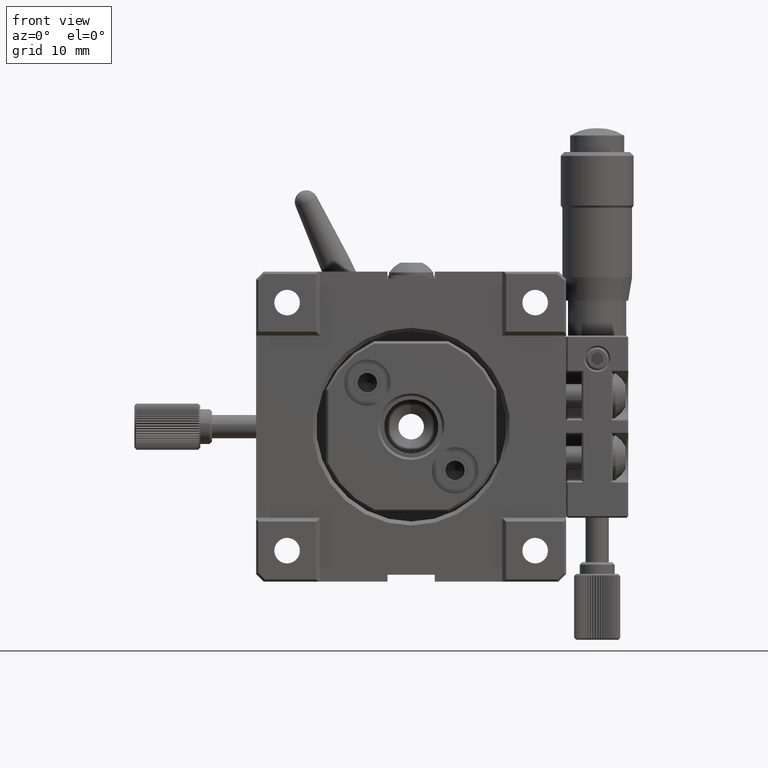
[diagram: clean part render]
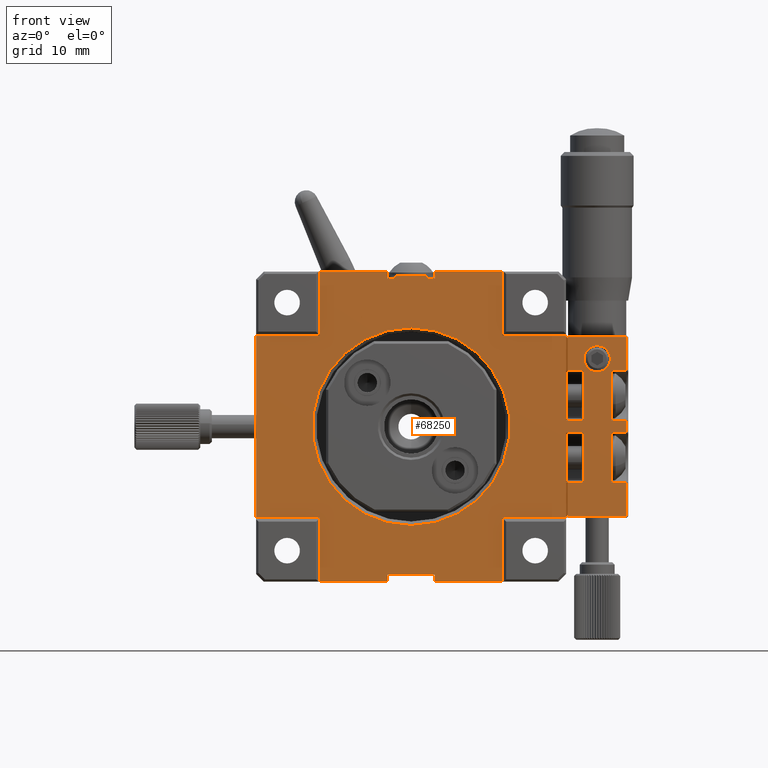
[diagram: same view with one face highlighted and labeled with its STEP entity id]
A machine part, front view. The second image highlights one B-rep face of the part: STEP entity #68250.
In plain terms, the highlighted planar face has unit normal (0, -1, 0).
Its self-contained STEP definition (entity closure, byte-faithful):
#305 = VECTOR ( 'NONE', #69657, 1000.000000000000000 ) ;
#596 = CARTESIAN_POINT ( 'NONE',  ( -11.75000000000000000, 0.5000000000000000000, 20.00000000000000000 ) ) ;
#1166 = VECTOR ( 'NONE', #2048, 1000.000000000000000 ) ;
#1275 = CARTESIAN_POINT ( 'NONE',  ( 22.19999999999999929, 0.5000000000000000000, 0.8000000000000000444 ) ) ;
#1514 = LINE ( 'NONE', #20773, #24554 ) ;
#1616 = VERTEX_POINT ( 'NONE', #49178 ) ;
#1644 = VECTOR ( 'NONE', #62742, 1000.000000000000000 ) ;
#2048 = DIRECTION ( 'NONE',  ( 1.018286075287359834E-16, 0.000000000000000000, -1.000000000000000000 ) ) ;
#2622 = ORIENTED_EDGE ( 'NONE', *, *, #53156, .T. ) ;
#2629 = VERTEX_POINT ( 'NONE', #14756 ) ;
#2637 = VERTEX_POINT ( 'NONE', #46365 ) ;
#2703 = EDGE_LOOP ( 'NONE', ( #38458, #41977, #75046, #14039, #77905, #35762, #25417, #46527, #57033, #58699, #4677, #33734, #14858, #42198, #5572, #34645, #76983, #34837, #22794, #42275, #2622, #53878, #45817, #31818, #65337, #14040, #43835, #62694, #54703, #78916, #64433, #81099, #78407, #17248, #61199, #46914, #71843, #10741, #50081, #68660, #14699, #80212, #60956, #42434 ) ) ;
#3072 = DIRECTION ( 'NONE',  ( 0.000000000000000000, 0.000000000000000000, -1.000000000000000000 ) ) ;
#3830 = LINE ( 'NONE', #28834, #33630 ) ;
#4087 = CARTESIAN_POINT ( 'NONE',  ( 25.80000000000000071, 0.5000000000000000000, -0.8000000000000000444 ) ) ;
#4136 = DIRECTION ( 'NONE',  ( 1.379588503577817868E-16, 0.000000000000000000, -1.000000000000000000 ) ) ;
#4311 = CARTESIAN_POINT ( 'NONE',  ( 3.050000000000000266, 0.5000000000000000000, 12.25000000000000000 ) ) ;
#4677 = ORIENTED_EDGE ( 'NONE', *, *, #53858, .T. ) ;
#5004 = CARTESIAN_POINT ( 'NONE',  ( -20.00000000000000000, 0.5000000000000000000, -11.75000000000000000 ) ) ;
#5155 = VERTEX_POINT ( 'NONE', #50746 ) ;
#5236 = LINE ( 'NONE', #17932, #14737 ) ;
#5362 = AXIS2_PLACEMENT_3D ( 'NONE', #20421, #45461, #70554 ) ;
#5448 = CARTESIAN_POINT ( 'NONE',  ( 20.19999999999999929, 0.5000000000000000000, 11.54999999999999893 ) ) ;
#5572 = ORIENTED_EDGE ( 'NONE', *, *, #58209, .T. ) ;
#5777 = VERTEX_POINT ( 'NONE', #28445 ) ;
#5808 = LINE ( 'NONE', #50101, #76094 ) ;
#5899 = CARTESIAN_POINT ( 'NONE',  ( 20.00000000000000000, 0.5000000000000000000, -7.200000000000000178 ) ) ;
#5942 = VERTEX_POINT ( 'NONE', #6267 ) ;
#6267 = CARTESIAN_POINT ( 'NONE',  ( 20.19999999999999929, 0.5000000000000000000, -7.200000000000000178 ) ) ;
#6441 = DIRECTION ( 'NONE',  ( 1.379588503577817868E-16, 0.000000000000000000, 1.000000000000000000 ) ) ;
#6574 = EDGE_CURVE ( 'NONE', #13613, #40502, #56039, .T. ) ;
#7344 = CARTESIAN_POINT ( 'NONE',  ( -19.00000000000000000, 0.5000000000000000000, -20.00000000000000000 ) ) ;
#7421 = VERTEX_POINT ( 'NONE', #4087 ) ;
#7445 = VECTOR ( 'NONE', #54105, 1000.000000000000000 ) ;
#8600 = CARTESIAN_POINT ( 'NONE',  ( 3.050000000000000266, 0.5000000000000000000, 12.25000000000000000 ) ) ;
#8639 = DIRECTION ( 'NONE',  ( 0.000000000000000000, 0.000000000000000000, 1.000000000000000000 ) ) ;
#8772 = DIRECTION ( 'NONE',  ( 0.000000000000000000, 0.000000000000000000, 1.000000000000000000 ) ) ;
#8943 = DIRECTION ( 'NONE',  ( 1.000000000000000000, 0.000000000000000000, 0.000000000000000000 ) ) ;
#9125 = CARTESIAN_POINT ( 'NONE',  ( 20.19999999999999929, 0.5000000000000000000, 11.75000000000000000 ) ) ;
#9457 = LINE ( 'NONE', #64887, #78057 ) ;
#9487 = VECTOR ( 'NONE', #31754, 1000.000000000000000 ) ;
#10002 = VERTEX_POINT ( 'NONE', #62471 ) ;
#10459 = LINE ( 'NONE', #4311, #79166 ) ;
#10661 = VECTOR ( 'NONE', #41744, 1000.000000000000000 ) ;
#10741 = ORIENTED_EDGE ( 'NONE', *, *, #42909, .T. ) ;
#11833 = DIRECTION ( 'NONE',  ( 0.000000000000000000, 0.000000000000000000, 1.000000000000000000 ) ) ;
#12183 = CARTESIAN_POINT ( 'NONE',  ( 11.75000000000000000, 0.5000000000000000000, 12.25000000000000000 ) ) ;
#12422 = EDGE_CURVE ( 'NONE', #57725, #5155, #71441, .T. ) ;
#12443 = LINE ( 'NONE', #5899, #39296 ) ;
#12822 = CIRCLE ( 'NONE', #25933, 1.700000000000000178 ) ;
#12966 = LINE ( 'NONE', #15268, #24861 ) ;
#12971 = VERTEX_POINT ( 'NONE', #28897 ) ;
#13613 = VERTEX_POINT ( 'NONE', #70657 ) ;
#13782 = CARTESIAN_POINT ( 'NONE',  ( -19.00000000000000000, 0.5000000000000000000, 20.00000000000000000 ) ) ;
#14039 = ORIENTED_EDGE ( 'NONE', *, *, #60121, .T. ) ;
#14040 = ORIENTED_EDGE ( 'NONE', *, *, #73221, .T. ) ;
#14286 = DIRECTION ( 'NONE',  ( -1.527429112931039874E-16, 0.000000000000000000, -1.000000000000000000 ) ) ;
#14441 = CARTESIAN_POINT ( 'NONE',  ( 3.050000000000000266, 0.5000000000000000000, -19.09999999999999787 ) ) ;
#14575 = CARTESIAN_POINT ( 'NONE',  ( 27.79999999999999716, 0.5000000000000000000, -11.54999999999999893 ) ) ;
#14666 = VERTEX_POINT ( 'NONE', #79908 ) ;
#14699 = ORIENTED_EDGE ( 'NONE', *, *, #6574, .T. ) ;
#14722 = LINE ( 'NONE', #15109, #7445 ) ;
#14737 = VECTOR ( 'NONE', #16699, 1000.000000000000000 ) ;
#14756 = CARTESIAN_POINT ( 'NONE',  ( -3.050000000000000266, 0.5000000000000000000, 19.09999999999999787 ) ) ;
#14858 = ORIENTED_EDGE ( 'NONE', *, *, #24326, .T. ) ;
#14888 = EDGE_CURVE ( 'NONE', #74481, #77259, #32486, .T. ) ;
#14907 = CARTESIAN_POINT ( 'NONE',  ( 24.00000000000000000, 0.5000000000000000000, 8.750000000000000000 ) ) ;
#15109 = CARTESIAN_POINT ( 'NONE',  ( 22.00000000000000000, 0.5000000000000000000, -0.8000000000000000444 ) ) ;
#15260 = DIRECTION ( 'NONE',  ( 0.000000000000000000, 0.000000000000000000, -1.000000000000000000 ) ) ;
#15268 = CARTESIAN_POINT ( 'NONE',  ( 2.000000000000000000, 0.5000000000000000000, 19.50000000000000000 ) ) ;
#15662 = DIRECTION ( 'NONE',  ( -1.000000000000000000, 0.000000000000000000, 0.000000000000000000 ) ) ;
#16443 = VERTEX_POINT ( 'NONE', #78115 ) ;
#16621 = EDGE_CURVE ( 'NONE', #17672, #7421, #42753, .T. ) ;
#16699 = DIRECTION ( 'NONE',  ( -1.390841875404341941E-16, 0.000000000000000000, 1.000000000000000000 ) ) ;
#16956 = DIRECTION ( 'NONE',  ( 0.000000000000000000, 0.000000000000000000, -1.000000000000000000 ) ) ;
#17248 = ORIENTED_EDGE ( 'NONE', *, *, #48293, .F. ) ;
#17369 = CARTESIAN_POINT ( 'NONE',  ( 1.561424668912875111E-15, 0.5000000000000000000, 12.75000000000000000 ) ) ;
#17446 = DIRECTION ( 'NONE',  ( 1.000000000000000000, 0.000000000000000000, 0.000000000000000000 ) ) ;
#17662 = DIRECTION ( 'NONE',  ( -1.527429112931039874E-16, 0.000000000000000000, 1.000000000000000000 ) ) ;
#17672 = VERTEX_POINT ( 'NONE', #27593 ) ;
#17932 = CARTESIAN_POINT ( 'NONE',  ( 11.75000000000000000, 0.5000000000000000000, 12.25000000000000000 ) ) ;
#18058 = CARTESIAN_POINT ( 'NONE',  ( 20.00000000000000000, 0.5000000000000000000, 11.75000000000000000 ) ) ;
#18065 = AXIS2_PLACEMENT_3D ( 'NONE', #77431, #21953, #21144 ) ;
#18072 = CARTESIAN_POINT ( 'NONE',  ( -3.050000000000000266, 0.5000000000000000000, 12.25000000000000000 ) ) ;
#18117 = EDGE_CURVE ( 'NONE', #33339, #42830, #57854, .T. ) ;
#18283 = CARTESIAN_POINT ( 'NONE',  ( 20.00000000000000000, 0.5000000000000000000, -7.200000000000000178 ) ) ;
#18410 = EDGE_CURVE ( 'NONE', #20595, #24511, #50982, .T. ) ;
#18981 = VERTEX_POINT ( 'NONE', #75782 ) ;
#19102 = VERTEX_POINT ( 'NONE', #53532 ) ;
#19218 = EDGE_CURVE ( 'NONE', #51148, #17672, #12443, .T. ) ;
#19478 = VECTOR ( 'NONE', #48911, 1000.000000000000000 ) ;
#19533 = VECTOR ( 'NONE', #53551, 1000.000000000000000 ) ;
#19594 = VERTEX_POINT ( 'NONE', #42346 ) ;
#19730 = VECTOR ( 'NONE', #67369, 1000.000000000000000 ) ;
#20027 = FACE_OUTER_BOUND ( 'NONE', #2703, .T. ) ;
#20180 = EDGE_CURVE ( 'NONE', #46474, #10002, #40836, .T. ) ;
#20224 = LINE ( 'NONE', #39514, #21326 ) ;
#20276 = LINE ( 'NONE', #43709, #59672 ) ;
#20395 = LINE ( 'NONE', #39697, #80009 ) ;
#20421 = CARTESIAN_POINT ( 'NONE',  ( -12.25000000000000000, 0.5000000000000000000, 12.25000000000000000 ) ) ;
#20595 = VERTEX_POINT ( 'NONE', #38311 ) ;
#20773 = CARTESIAN_POINT ( 'NONE',  ( 20.00000000000000000, 0.5000000000000000000, 0.8000000000000000444 ) ) ;
#20877 = VERTEX_POINT ( 'NONE', #48499 ) ;
#21144 = DIRECTION ( 'NONE',  ( 0.000000000000000000, 0.000000000000000000, -1.000000000000000000 ) ) ;
#21326 = VECTOR ( 'NONE', #63350, 1000.000000000000000 ) ;
#21953 = DIRECTION ( 'NONE',  ( 0.000000000000000000, 1.000000000000000000, 0.000000000000000000 ) ) ;
#22006 = EDGE_CURVE ( 'NONE', #74760, #19102, #20276, .T. ) ;
#22510 = LINE ( 'NONE', #18283, #76863 ) ;
#22794 = ORIENTED_EDGE ( 'NONE', *, *, #53988, .T. ) ;
#23769 = DIRECTION ( 'NONE',  ( 0.000000000000000000, 0.000000000000000000, -1.000000000000000000 ) ) ;
#23906 = VECTOR ( 'NONE', #17662, 1000.000000000000000 ) ;
#24326 = EDGE_CURVE ( 'NONE', #28774, #5942, #22510, .T. ) ;
#24435 = CARTESIAN_POINT ( 'NONE',  ( -19.00000000000000000, 0.5000000000000000000, 20.00000000000000000 ) ) ;
#24511 = VERTEX_POINT ( 'NONE', #77794 ) ;
#24554 = VECTOR ( 'NONE', #69681, 1000.000000000000000 ) ;
#24563 = CARTESIAN_POINT ( 'NONE',  ( 22.19999999999999929, 0.5000000000000000000, 11.75000000000000000 ) ) ;
#24615 = DIRECTION ( 'NONE',  ( 9.130123557772669567E-17, 0.000000000000000000, 1.000000000000000000 ) ) ;
#24861 = VECTOR ( 'NONE', #57273, 1000.000000000000000 ) ;
#24934 = LINE ( 'NONE', #45436, #56417 ) ;
#25225 = VECTOR ( 'NONE', #34394, 1000.000000000000000 ) ;
#25417 = ORIENTED_EDGE ( 'NONE', *, *, #79322, .T. ) ;
#25628 = VERTEX_POINT ( 'NONE', #34078 ) ;
#25933 = AXIS2_PLACEMENT_3D ( 'NONE', #14907, #65015, #8772 ) ;
#26579 = FACE_BOUND ( 'NONE', #59640, .T. ) ;
#27258 = DIRECTION ( 'NONE',  ( 0.000000000000000000, 1.000000000000000000, 0.000000000000000000 ) ) ;
#27300 = CARTESIAN_POINT ( 'NONE',  ( 20.00000000000000000, 0.5000000000000000000, -11.75000000000000000 ) ) ;
#27593 = CARTESIAN_POINT ( 'NONE',  ( 25.80000000000000071, 0.5000000000000000000, -7.200000000000000178 ) ) ;
#27995 = VECTOR ( 'NONE', #15662, 1000.000000000000000 ) ;
#28445 = CARTESIAN_POINT ( 'NONE',  ( -11.75000000000000000, 0.5000000000000000000, -20.00000000000000000 ) ) ;
#28754 = CARTESIAN_POINT ( 'NONE',  ( -12.25000000000000000, 0.5000000000000000000, 19.09999999999999787 ) ) ;
#28774 = VERTEX_POINT ( 'NONE', #46907 ) ;
#28834 = CARTESIAN_POINT ( 'NONE',  ( 20.00000000000000000, 0.5000000000000000000, 7.200000000000000178 ) ) ;
#28897 = CARTESIAN_POINT ( 'NONE',  ( 27.79999999999999716, 0.5000000000000000000, 0.8000000000000000444 ) ) ;
#29178 = EDGE_CURVE ( 'NONE', #48144, #51148, #49990, .T. ) ;
#29309 = DIRECTION ( 'NONE',  ( 1.018286075287359834E-16, 0.000000000000000000, 1.000000000000000000 ) ) ;
#30091 = VERTEX_POINT ( 'NONE', #63759 ) ;
#30710 = DIRECTION ( 'NONE',  ( 1.000000000000000000, 0.000000000000000000, 0.000000000000000000 ) ) ;
#30726 = EDGE_CURVE ( 'NONE', #5155, #74760, #54964, .T. ) ;
#30750 = VECTOR ( 'NONE', #74567, 1000.000000000000000 ) ;
#30791 = LINE ( 'NONE', #74363, #19730 ) ;
#31355 = VERTEX_POINT ( 'NONE', #58801 ) ;
#31498 = CARTESIAN_POINT ( 'NONE',  ( 3.050000000000000266, 0.5000000000000000000, -20.00000000000000000 ) ) ;
#31754 = DIRECTION ( 'NONE',  ( 9.130123557772669567E-17, 0.000000000000000000, 1.000000000000000000 ) ) ;
#31818 = ORIENTED_EDGE ( 'NONE', *, *, #54983, .T. ) ;
#31847 = EDGE_CURVE ( 'NONE', #31355, #12971, #9457, .T. ) ;
#32385 = EDGE_CURVE ( 'NONE', #2637, #72750, #75822, .T. ) ;
#32485 = VERTEX_POINT ( 'NONE', #27300 ) ;
#32486 = CIRCLE ( 'NONE', #49546, 12.75000000000000000 ) ;
#33169 = LINE ( 'NONE', #34378, #57925 ) ;
#33339 = VERTEX_POINT ( 'NONE', #14441 ) ;
#33630 = VECTOR ( 'NONE', #67429, 1000.000000000000000 ) ;
#33636 = DIRECTION ( 'NONE',  ( 1.000000000000000000, 0.000000000000000000, 0.000000000000000000 ) ) ;
#33657 = CARTESIAN_POINT ( 'NONE',  ( 25.80000000000000071, 0.5000000000000000000, 7.200000000000000178 ) ) ;
#33734 = ORIENTED_EDGE ( 'NONE', *, *, #35012, .T. ) ;
#34078 = CARTESIAN_POINT ( 'NONE',  ( 25.80000000000000071, 0.5000000000000000000, 0.8000000000000000444 ) ) ;
#34378 = CARTESIAN_POINT ( 'NONE',  ( -12.25000000000000000, 0.5000000000000000000, -11.75000000000000000 ) ) ;
#34394 = DIRECTION ( 'NONE',  ( 1.000000000000000000, 0.000000000000000000, 0.000000000000000000 ) ) ;
#34512 = CARTESIAN_POINT ( 'NONE',  ( -11.75000000000000000, 0.5000000000000000000, 12.25000000000000000 ) ) ;
#34645 = ORIENTED_EDGE ( 'NONE', *, *, #29178, .T. ) ;
#34837 = ORIENTED_EDGE ( 'NONE', *, *, #16621, .T. ) ;
#34924 = LINE ( 'NONE', #28754, #73723 ) ;
#34956 = CARTESIAN_POINT ( 'NONE',  ( 20.00000000000000000, 0.5000000000000000000, 11.54999999999999893 ) ) ;
#35012 = EDGE_CURVE ( 'NONE', #79472, #28774, #81239, .T. ) ;
#35325 = LINE ( 'NONE', #34512, #69245 ) ;
#35566 = VECTOR ( 'NONE', #33636, 1000.000000000000000 ) ;
#35762 = ORIENTED_EDGE ( 'NONE', *, *, #18117, .T. ) ;
#35987 = LINE ( 'NONE', #79123, #10661 ) ;
#36199 = CARTESIAN_POINT ( 'NONE',  ( 0.000000000000000000, 0.5000000000000000000, -12.75000000000000000 ) ) ;
#36456 = ORIENTED_EDGE ( 'NONE', *, *, #18410, .T. ) ;
#36747 = CARTESIAN_POINT ( 'NONE',  ( 27.79999999999999716, 0.5000000000000000000, 7.200000000000000178 ) ) ;
#36853 = EDGE_CURVE ( 'NONE', #77259, #74481, #67906, .T. ) ;
#37102 = DIRECTION ( 'NONE',  ( -1.000000000000000000, 0.000000000000000000, 0.000000000000000000 ) ) ;
#37446 = VERTEX_POINT ( 'NONE', #43490 ) ;
#37546 = DIRECTION ( 'NONE',  ( -1.000000000000000000, 0.000000000000000000, 0.000000000000000000 ) ) ;
#37688 = CARTESIAN_POINT ( 'NONE',  ( 27.79999999999999716, 0.5000000000000000000, 11.75000000000000000 ) ) ;
#38311 = CARTESIAN_POINT ( 'NONE',  ( 24.00000000000000000, 0.5000000000000000000, 10.44999999999999041 ) ) ;
#38458 = ORIENTED_EDGE ( 'NONE', *, *, #45005, .T. ) ;
#38673 = DIRECTION ( 'NONE',  ( 0.000000000000000000, 0.000000000000000000, 1.000000000000000000 ) ) ;
#39296 = VECTOR ( 'NONE', #37102, 1000.000000000000000 ) ;
#39336 = LINE ( 'NONE', #45478, #48914 ) ;
#39514 = CARTESIAN_POINT ( 'NONE',  ( 20.19999999999999929, 0.5000000000000000000, 11.75000000000000000 ) ) ;
#39543 = CARTESIAN_POINT ( 'NONE',  ( 20.19999999999999929, 0.5000000000000000000, -11.54999999999999893 ) ) ;
#39697 = CARTESIAN_POINT ( 'NONE',  ( -12.25000000000000000, 0.5000000000000000000, -11.75000000000000000 ) ) ;
#39738 = LINE ( 'NONE', #40136, #44982 ) ;
#39888 = CARTESIAN_POINT ( 'NONE',  ( 27.79999999999999716, 0.5000000000000000000, 11.75000000000000000 ) ) ;
#39919 = LINE ( 'NONE', #58378, #56717 ) ;
#40045 = VERTEX_POINT ( 'NONE', #71296 ) ;
#40136 = CARTESIAN_POINT ( 'NONE',  ( -3.000000000000000000, 0.5000000000000000000, 19.50000000000000000 ) ) ;
#40380 = VECTOR ( 'NONE', #38673, 1000.000000000000000 ) ;
#40502 = VERTEX_POINT ( 'NONE', #596 ) ;
#40660 = EDGE_CURVE ( 'NONE', #24511, #20595, #12822, .T. ) ;
#40822 = VERTEX_POINT ( 'NONE', #5448 ) ;
#40836 = LINE ( 'NONE', #79032, #19533 ) ;
#40953 = DIRECTION ( 'NONE',  ( 1.000000000000000000, 0.000000000000000000, 0.000000000000000000 ) ) ;
#41407 = DIRECTION ( 'NONE',  ( -1.000000000000000000, 0.000000000000000000, 0.000000000000000000 ) ) ;
#41744 = DIRECTION ( 'NONE',  ( 0.000000000000000000, 0.000000000000000000, 1.000000000000000000 ) ) ;
#41852 = CARTESIAN_POINT ( 'NONE',  ( 22.19999999999999929, 0.5000000000000000000, 1.000000000000000000 ) ) ;
#41977 = ORIENTED_EDGE ( 'NONE', *, *, #53620, .T. ) ;
#42198 = ORIENTED_EDGE ( 'NONE', *, *, #72209, .T. ) ;
#42275 = ORIENTED_EDGE ( 'NONE', *, *, #31847, .T. ) ;
#42346 = CARTESIAN_POINT ( 'NONE',  ( 20.00000000000000000, 0.5000000000000000000, -0.8000000000000000444 ) ) ;
#42434 = ORIENTED_EDGE ( 'NONE', *, *, #44855, .T. ) ;
#42753 = LINE ( 'NONE', #49301, #19478 ) ;
#42830 = VERTEX_POINT ( 'NONE', #31498 ) ;
#42909 = EDGE_CURVE ( 'NONE', #57126, #14666, #24934, .T. ) ;
#42920 = EDGE_CURVE ( 'NONE', #72750, #32485, #20395, .T. ) ;
#43325 = ORIENTED_EDGE ( 'NONE', *, *, #36853, .T. ) ;
#43443 = EDGE_CURVE ( 'NONE', #58948, #16443, #30791, .T. ) ;
#43490 = CARTESIAN_POINT ( 'NONE',  ( 11.75000000000000000, 0.5000000000000000000, 20.00000000000000000 ) ) ;
#43709 = CARTESIAN_POINT ( 'NONE',  ( 20.00000000000000000, 0.5000000000000000000, 0.8000000000000000444 ) ) ;
#43835 = ORIENTED_EDGE ( 'NONE', *, *, #12422, .T. ) ;
#43841 = EDGE_CURVE ( 'NONE', #25628, #48891, #35987, .T. ) ;
#44213 = ORIENTED_EDGE ( 'NONE', *, *, #14888, .T. ) ;
#44544 = CARTESIAN_POINT ( 'NONE',  ( -11.75000000000000000, 0.5000000000000000000, -11.75000000000000000 ) ) ;
#44674 = CARTESIAN_POINT ( 'NONE',  ( -20.00000000000000000, 0.5000000000000000000, -19.00000000000000000 ) ) ;
#44855 = EDGE_CURVE ( 'NONE', #10002, #80962, #51631, .T. ) ;
#44982 = VECTOR ( 'NONE', #8943, 1000.000000000000000 ) ;
#45005 = EDGE_CURVE ( 'NONE', #80962, #67363, #33169, .T. ) ;
#45220 = EDGE_CURVE ( 'NONE', #37446, #40045, #70062, .T. ) ;
#45436 = CARTESIAN_POINT ( 'NONE',  ( -2.000000000000000000, 0.5000000000000000000, 19.50000000000000000 ) ) ;
#45461 = DIRECTION ( 'NONE',  ( 0.000000000000000000, -1.000000000000000000, 0.000000000000000000 ) ) ;
#45478 = CARTESIAN_POINT ( 'NONE',  ( -3.050000000000000266, 0.5000000000000000000, 12.25000000000000000 ) ) ;
#45654 = EDGE_CURVE ( 'NONE', #19102, #58948, #55990, .T. ) ;
#45817 = ORIENTED_EDGE ( 'NONE', *, *, #52132, .T. ) ;
#46365 = CARTESIAN_POINT ( 'NONE',  ( 11.75000000000000000, 0.5000000000000000000, -20.00000000000000000 ) ) ;
#46474 = VERTEX_POINT ( 'NONE', #67713 ) ;
#46527 = ORIENTED_EDGE ( 'NONE', *, *, #32385, .T. ) ;
#46724 = DIRECTION ( 'NONE',  ( 1.000000000000000000, 0.000000000000000000, 0.000000000000000000 ) ) ;
#46907 = CARTESIAN_POINT ( 'NONE',  ( 22.19999999999999929, 0.5000000000000000000, -7.200000000000000178 ) ) ;
#46914 = ORIENTED_EDGE ( 'NONE', *, *, #80822, .T. ) ;
#47279 = DIRECTION ( 'NONE',  ( 0.000000000000000000, 0.000000000000000000, -1.000000000000000000 ) ) ;
#47809 = EDGE_CURVE ( 'NONE', #13613, #2629, #39336, .T. ) ;
#47830 = EDGE_CURVE ( 'NONE', #57126, #20877, #39738, .T. ) ;
#48144 = VERTEX_POINT ( 'NONE', #14575 ) ;
#48293 = EDGE_CURVE ( 'NONE', #18981, #40045, #10459, .T. ) ;
#48499 = CARTESIAN_POINT ( 'NONE',  ( 2.000000000000000000, 0.5000000000000000000, 19.50000000000000000 ) ) ;
#48891 = VERTEX_POINT ( 'NONE', #33657 ) ;
#48911 = DIRECTION ( 'NONE',  ( 0.000000000000000000, 0.000000000000000000, 1.000000000000000000 ) ) ;
#48914 = VECTOR ( 'NONE', #14286, 1000.000000000000000 ) ;
#49178 = CARTESIAN_POINT ( 'NONE',  ( -3.050000000000000266, 0.5000000000000000000, -20.00000000000000000 ) ) ;
#49242 = LINE ( 'NONE', #68970, #61361 ) ;
#49301 = CARTESIAN_POINT ( 'NONE',  ( 25.80000000000000071, 0.5000000000000000000, 11.75000000000000000 ) ) ;
#49448 = CARTESIAN_POINT ( 'NONE',  ( 20.00000000000000000, 0.5000000000000000000, -11.54999999999999893 ) ) ;
#49546 = AXIS2_PLACEMENT_3D ( 'NONE', #59277, #27258, #3072 ) ;
#49990 = LINE ( 'NONE', #37688, #1644 ) ;
#50081 = ORIENTED_EDGE ( 'NONE', *, *, #57500, .F. ) ;
#50101 = CARTESIAN_POINT ( 'NONE',  ( -12.25000000000000000, 0.5000000000000000000, 19.09999999999999787 ) ) ;
#50198 = LINE ( 'NONE', #76098, #72588 ) ;
#50746 = CARTESIAN_POINT ( 'NONE',  ( 22.19999999999999929, 0.5000000000000000000, 7.200000000000000178 ) ) ;
#50982 = CIRCLE ( 'NONE', #62851, 1.700000000000000178 ) ;
#51030 = CARTESIAN_POINT ( 'NONE',  ( 27.79999999999999716, 0.5000000000000000000, 11.54999999999999893 ) ) ;
#51148 = VERTEX_POINT ( 'NONE', #56293 ) ;
#51618 = PLANE ( 'NONE',  #5362 ) ;
#51631 = LINE ( 'NONE', #44674, #67147 ) ;
#51985 = DIRECTION ( 'NONE',  ( 1.000000000000000000, 0.000000000000000000, 0.000000000000000000 ) ) ;
#52132 = EDGE_CURVE ( 'NONE', #48891, #58182, #3830, .T. ) ;
#53156 = EDGE_CURVE ( 'NONE', #12971, #25628, #1514, .T. ) ;
#53532 = CARTESIAN_POINT ( 'NONE',  ( 20.00000000000000000, 0.5000000000000000000, 0.8000000000000000444 ) ) ;
#53551 = DIRECTION ( 'NONE',  ( -1.000000000000000000, 0.000000000000000000, 0.000000000000000000 ) ) ;
#53620 = EDGE_CURVE ( 'NONE', #67363, #5777, #35325, .T. ) ;
#53732 = EDGE_CURVE ( 'NONE', #32485, #19594, #49242, .T. ) ;
#53858 = EDGE_CURVE ( 'NONE', #19594, #79472, #14722, .T. ) ;
#53878 = ORIENTED_EDGE ( 'NONE', *, *, #43841, .T. ) ;
#53988 = EDGE_CURVE ( 'NONE', #7421, #31355, #73447, .T. ) ;
#54105 = DIRECTION ( 'NONE',  ( 1.000000000000000000, 0.000000000000000000, 0.000000000000000000 ) ) ;
#54703 = ORIENTED_EDGE ( 'NONE', *, *, #22006, .T. ) ;
#54964 = LINE ( 'NONE', #41852, #60815 ) ;
#54983 = EDGE_CURVE ( 'NONE', #58182, #75957, #77276, .T. ) ;
#55927 = VECTOR ( 'NONE', #47279, 1000.000000000000000 ) ;
#55990 = LINE ( 'NONE', #81054, #9487 ) ;
#56039 = LINE ( 'NONE', #24435, #30750 ) ;
#56293 = CARTESIAN_POINT ( 'NONE',  ( 27.79999999999999716, 0.5000000000000000000, -7.200000000000000178 ) ) ;
#56375 = DIRECTION ( 'NONE',  ( 0.000000000000000000, 0.000000000000000000, -1.000000000000000000 ) ) ;
#56417 = VECTOR ( 'NONE', #16956, 1000.000000000000000 ) ;
#56425 = LINE ( 'NONE', #49448, #64296 ) ;
#56573 = CARTESIAN_POINT ( 'NONE',  ( -19.00000000000000000, 0.5000000000000000000, -20.00000000000000000 ) ) ;
#56717 = VECTOR ( 'NONE', #64971, 1000.000000000000000 ) ;
#56988 = LINE ( 'NONE', #7344, #25225 ) ;
#57033 = ORIENTED_EDGE ( 'NONE', *, *, #42920, .T. ) ;
#57126 = VERTEX_POINT ( 'NONE', #62548 ) ;
#57273 = DIRECTION ( 'NONE',  ( 0.000000000000000000, 0.000000000000000000, 1.000000000000000000 ) ) ;
#57500 = EDGE_CURVE ( 'NONE', #2629, #14666, #5808, .T. ) ;
#57725 = VERTEX_POINT ( 'NONE', #66083 ) ;
#57854 = LINE ( 'NONE', #8600, #1166 ) ;
#57925 = VECTOR ( 'NONE', #40953, 1000.000000000000000 ) ;
#58182 = VERTEX_POINT ( 'NONE', #36747 ) ;
#58189 = CARTESIAN_POINT ( 'NONE',  ( 22.19999999999999929, 0.5000000000000000000, -0.8000000000000000444 ) ) ;
#58209 = EDGE_CURVE ( 'NONE', #75951, #48144, #56425, .T. ) ;
#58378 = CARTESIAN_POINT ( 'NONE',  ( -12.25000000000000000, 0.5000000000000000000, -19.09999999999999787 ) ) ;
#58699 = ORIENTED_EDGE ( 'NONE', *, *, #53732, .T. ) ;
#58801 = CARTESIAN_POINT ( 'NONE',  ( 27.79999999999999716, 0.5000000000000000000, -0.8000000000000000444 ) ) ;
#58948 = VERTEX_POINT ( 'NONE', #18058 ) ;
#59277 = CARTESIAN_POINT ( 'NONE',  ( 0.000000000000000000, 0.5000000000000000000, 0.000000000000000000 ) ) ;
#59640 = EDGE_LOOP ( 'NONE', ( #71535, #36456 ) ) ;
#59672 = VECTOR ( 'NONE', #37546, 1000.000000000000000 ) ;
#60121 = EDGE_CURVE ( 'NONE', #1616, #30091, #68174, .T. ) ;
#60815 = VECTOR ( 'NONE', #23769, 1000.000000000000000 ) ;
#60956 = ORIENTED_EDGE ( 'NONE', *, *, #20180, .T. ) ;
#61188 = EDGE_LOOP ( 'NONE', ( #44213, #43325 ) ) ;
#61199 = ORIENTED_EDGE ( 'NONE', *, *, #69542, .F. ) ;
#61361 = VECTOR ( 'NONE', #24615, 1000.000000000000000 ) ;
#62046 = DIRECTION ( 'NONE',  ( 1.000000000000000000, 0.000000000000000000, 0.000000000000000000 ) ) ;
#62078 = EDGE_CURVE ( 'NONE', #5777, #1616, #56988, .T. ) ;
#62249 = EDGE_CURVE ( 'NONE', #16443, #37446, #5236, .T. ) ;
#62471 = CARTESIAN_POINT ( 'NONE',  ( -20.00000000000000000, 0.5000000000000000000, 11.75000000000000000 ) ) ;
#62548 = CARTESIAN_POINT ( 'NONE',  ( -2.000000000000000000, 0.5000000000000000000, 19.50000000000000000 ) ) ;
#62694 = ORIENTED_EDGE ( 'NONE', *, *, #30726, .T. ) ;
#62742 = DIRECTION ( 'NONE',  ( 0.000000000000000000, 0.000000000000000000, 1.000000000000000000 ) ) ;
#62851 = AXIS2_PLACEMENT_3D ( 'NONE', #80011, #80424, #11833 ) ;
#63350 = DIRECTION ( 'NONE',  ( 0.000000000000000000, 0.000000000000000000, -1.000000000000000000 ) ) ;
#63414 = VECTOR ( 'NONE', #15260, 1000.000000000000000 ) ;
#63759 = CARTESIAN_POINT ( 'NONE',  ( -3.050000000000000266, 0.5000000000000000000, -19.09999999999999787 ) ) ;
#64054 = CARTESIAN_POINT ( 'NONE',  ( 22.00000000000000000, 0.5000000000000000000, 7.200000000000000178 ) ) ;
#64224 = CARTESIAN_POINT ( 'NONE',  ( 11.75000000000000000, 0.5000000000000000000, -11.75000000000000000 ) ) ;
#64296 = VECTOR ( 'NONE', #17446, 1000.000000000000000 ) ;
#64433 = ORIENTED_EDGE ( 'NONE', *, *, #43443, .T. ) ;
#64887 = CARTESIAN_POINT ( 'NONE',  ( 27.79999999999999716, 0.5000000000000000000, 11.75000000000000000 ) ) ;
#64970 = LINE ( 'NONE', #9125, #63414 ) ;
#64971 = DIRECTION ( 'NONE',  ( 1.000000000000000000, 0.000000000000000000, 0.000000000000000000 ) ) ;
#65015 = DIRECTION ( 'NONE',  ( 0.000000000000000000, 1.000000000000000000, 0.000000000000000000 ) ) ;
#65030 = VECTOR ( 'NONE', #6441, 1000.000000000000000 ) ;
#65185 = VECTOR ( 'NONE', #46724, 1000.000000000000000 ) ;
#65337 = ORIENTED_EDGE ( 'NONE', *, *, #73297, .T. ) ;
#66083 = CARTESIAN_POINT ( 'NONE',  ( 20.19999999999999929, 0.5000000000000000000, 7.200000000000000178 ) ) ;
#66175 = LINE ( 'NONE', #34956, #27995 ) ;
#67147 = VECTOR ( 'NONE', #75911, 1000.000000000000000 ) ;
#67363 = VERTEX_POINT ( 'NONE', #44544 ) ;
#67369 = DIRECTION ( 'NONE',  ( -1.000000000000000000, 0.000000000000000000, 0.000000000000000000 ) ) ;
#67429 = DIRECTION ( 'NONE',  ( 1.000000000000000000, 0.000000000000000000, 0.000000000000000000 ) ) ;
#67713 = CARTESIAN_POINT ( 'NONE',  ( -11.75000000000000000, 0.5000000000000000000, 11.75000000000000000 ) ) ;
#67906 = CIRCLE ( 'NONE', #18065, 12.75000000000000000 ) ;
#68174 = LINE ( 'NONE', #18072, #23906 ) ;
#68250 = ADVANCED_FACE ( 'NONE', ( #20027, #70144, #26579 ), #51618, .T. ) ;
#68660 = ORIENTED_EDGE ( 'NONE', *, *, #47809, .F. ) ;
#68868 = VERTEX_POINT ( 'NONE', #70349 ) ;
#68970 = CARTESIAN_POINT ( 'NONE',  ( 20.00000000000000000, 0.5000000000000000000, -19.00000000000000000 ) ) ;
#69245 = VECTOR ( 'NONE', #4136, 1000.000000000000000 ) ;
#69542 = EDGE_CURVE ( 'NONE', #68868, #18981, #34924, .T. ) ;
#69657 = DIRECTION ( 'NONE',  ( -1.000000000000000000, 0.000000000000000000, 0.000000000000000000 ) ) ;
#69681 = DIRECTION ( 'NONE',  ( -1.000000000000000000, 0.000000000000000000, 0.000000000000000000 ) ) ;
#70062 = LINE ( 'NONE', #13782, #305 ) ;
#70144 = FACE_BOUND ( 'NONE', #61188, .T. ) ;
#70349 = CARTESIAN_POINT ( 'NONE',  ( 2.000000000000000000, 0.5000000000000000000, 19.09999999999999787 ) ) ;
#70554 = DIRECTION ( 'NONE',  ( 0.000000000000000000, 0.000000000000000000, -1.000000000000000000 ) ) ;
#70657 = CARTESIAN_POINT ( 'NONE',  ( -3.050000000000000266, 0.5000000000000000000, 20.00000000000000000 ) ) ;
#71296 = CARTESIAN_POINT ( 'NONE',  ( 3.050000000000000266, 0.5000000000000000000, 20.00000000000000000 ) ) ;
#71441 = LINE ( 'NONE', #64054, #35566 ) ;
#71535 = ORIENTED_EDGE ( 'NONE', *, *, #40660, .T. ) ;
#71843 = ORIENTED_EDGE ( 'NONE', *, *, #47830, .F. ) ;
#71890 = VECTOR ( 'NONE', #30710, 1000.000000000000000 ) ;
#72201 = EDGE_CURVE ( 'NONE', #30091, #33339, #39919, .T. ) ;
#72209 = EDGE_CURVE ( 'NONE', #5942, #75951, #20224, .T. ) ;
#72588 = VECTOR ( 'NONE', #56375, 1000.000000000000000 ) ;
#72719 = DIRECTION ( 'NONE',  ( 1.000000000000000000, 0.000000000000000000, 0.000000000000000000 ) ) ;
#72750 = VERTEX_POINT ( 'NONE', #64224 ) ;
#72995 = EDGE_CURVE ( 'NONE', #40502, #46474, #50198, .T. ) ;
#73221 = EDGE_CURVE ( 'NONE', #40822, #57725, #64970, .T. ) ;
#73297 = EDGE_CURVE ( 'NONE', #75957, #40822, #66175, .T. ) ;
#73447 = LINE ( 'NONE', #78777, #65185 ) ;
#73723 = VECTOR ( 'NONE', #72719, 1000.000000000000000 ) ;
#74363 = CARTESIAN_POINT ( 'NONE',  ( -12.25000000000000000, 0.5000000000000000000, 11.75000000000000000 ) ) ;
#74481 = VERTEX_POINT ( 'NONE', #36199 ) ;
#74567 = DIRECTION ( 'NONE',  ( -1.000000000000000000, 0.000000000000000000, 0.000000000000000000 ) ) ;
#74760 = VERTEX_POINT ( 'NONE', #1275 ) ;
#75046 = ORIENTED_EDGE ( 'NONE', *, *, #62078, .T. ) ;
#75089 = LINE ( 'NONE', #56573, #71890 ) ;
#75782 = CARTESIAN_POINT ( 'NONE',  ( 3.050000000000000266, 0.5000000000000000000, 19.09999999999999787 ) ) ;
#75822 = LINE ( 'NONE', #12183, #65030 ) ;
#75911 = DIRECTION ( 'NONE',  ( 0.000000000000000000, 0.000000000000000000, -1.000000000000000000 ) ) ;
#75951 = VERTEX_POINT ( 'NONE', #39543 ) ;
#75957 = VERTEX_POINT ( 'NONE', #51030 ) ;
#76094 = VECTOR ( 'NONE', #62046, 1000.000000000000000 ) ;
#76098 = CARTESIAN_POINT ( 'NONE',  ( -11.75000000000000000, 0.5000000000000000000, 12.25000000000000000 ) ) ;
#76863 = VECTOR ( 'NONE', #41407, 1000.000000000000000 ) ;
#76983 = ORIENTED_EDGE ( 'NONE', *, *, #19218, .T. ) ;
#77259 = VERTEX_POINT ( 'NONE', #17369 ) ;
#77276 = LINE ( 'NONE', #39888, #40380 ) ;
#77431 = CARTESIAN_POINT ( 'NONE',  ( 0.000000000000000000, 0.5000000000000000000, 0.000000000000000000 ) ) ;
#77794 = CARTESIAN_POINT ( 'NONE',  ( 24.00000000000000000, 0.5000000000000000000, 7.050000000000011369 ) ) ;
#77905 = ORIENTED_EDGE ( 'NONE', *, *, #72201, .T. ) ;
#78057 = VECTOR ( 'NONE', #8639, 1000.000000000000000 ) ;
#78115 = CARTESIAN_POINT ( 'NONE',  ( 11.75000000000000000, 0.5000000000000000000, 11.75000000000000000 ) ) ;
#78407 = ORIENTED_EDGE ( 'NONE', *, *, #45220, .T. ) ;
#78777 = CARTESIAN_POINT ( 'NONE',  ( 20.00000000000000000, 0.5000000000000000000, -0.8000000000000000444 ) ) ;
#78916 = ORIENTED_EDGE ( 'NONE', *, *, #45654, .T. ) ;
#79032 = CARTESIAN_POINT ( 'NONE',  ( -12.25000000000000000, 0.5000000000000000000, 11.75000000000000000 ) ) ;
#79123 = CARTESIAN_POINT ( 'NONE',  ( 25.80000000000000071, 0.5000000000000000000, 7.000000000000000000 ) ) ;
#79166 = VECTOR ( 'NONE', #29309, 1000.000000000000000 ) ;
#79322 = EDGE_CURVE ( 'NONE', #42830, #2637, #75089, .T. ) ;
#79472 = VERTEX_POINT ( 'NONE', #58189 ) ;
#79908 = CARTESIAN_POINT ( 'NONE',  ( -2.000000000000000000, 0.5000000000000000000, 19.09999999999999787 ) ) ;
#80009 = VECTOR ( 'NONE', #51985, 1000.000000000000000 ) ;
#80011 = CARTESIAN_POINT ( 'NONE',  ( 24.00000000000000000, 0.5000000000000000000, 8.750000000000000000 ) ) ;
#80212 = ORIENTED_EDGE ( 'NONE', *, *, #72995, .T. ) ;
#80424 = DIRECTION ( 'NONE',  ( 0.000000000000000000, 1.000000000000000000, 0.000000000000000000 ) ) ;
#80822 = EDGE_CURVE ( 'NONE', #68868, #20877, #12966, .T. ) ;
#80962 = VERTEX_POINT ( 'NONE', #5004 ) ;
#81054 = CARTESIAN_POINT ( 'NONE',  ( 20.00000000000000000, 0.5000000000000000000, -19.00000000000000000 ) ) ;
#81099 = ORIENTED_EDGE ( 'NONE', *, *, #62249, .T. ) ;
#81239 = LINE ( 'NONE', #24563, #55927 ) ;